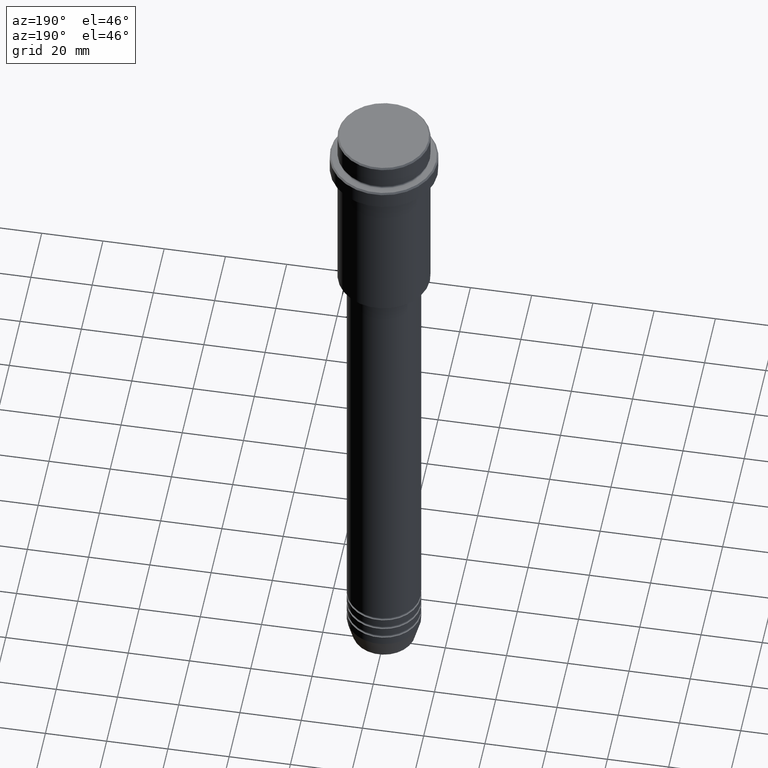
[diagram: clean part render]
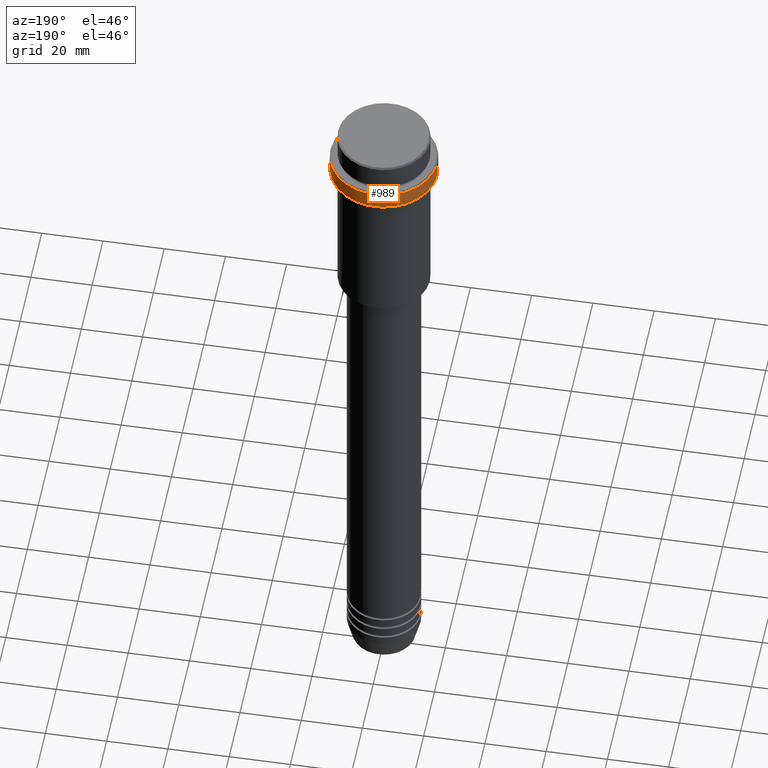
[diagram: same view with one face highlighted and labeled with its STEP entity id]
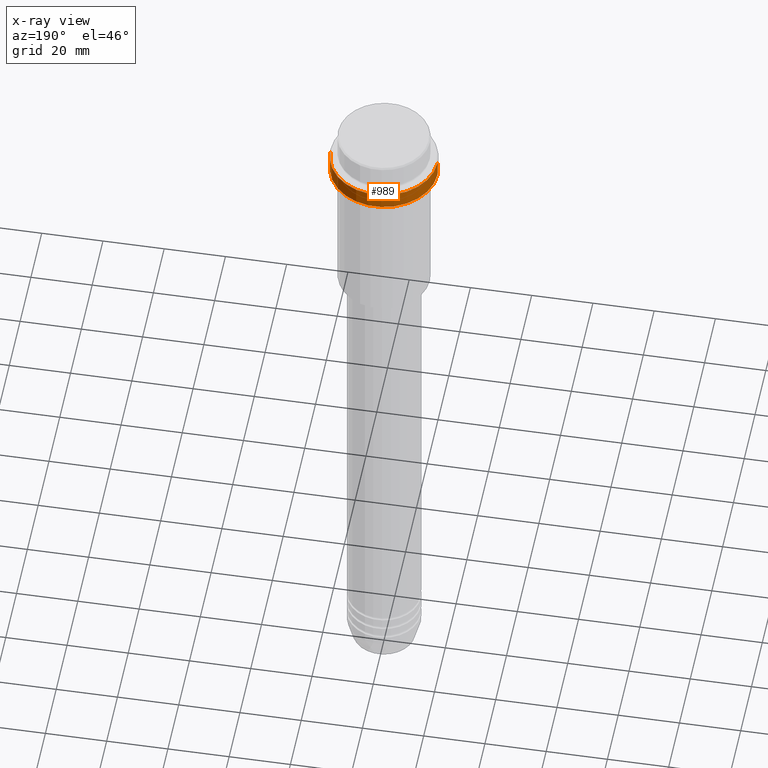
[diagram: x-ray of the same camera — body ghosted, the highlighted face saturated]
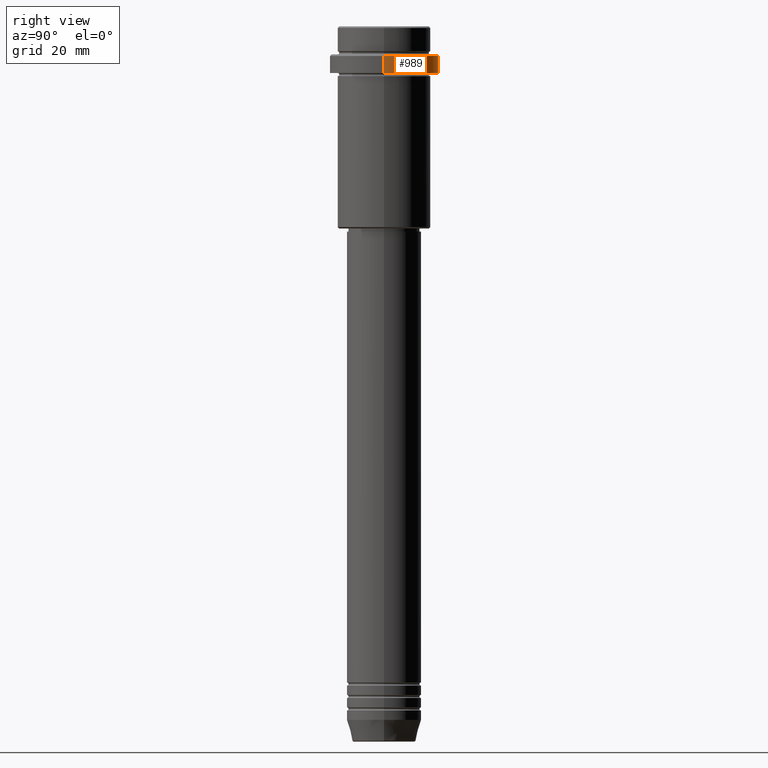
[diagram: same view with one face highlighted and labeled with its STEP entity id]
A machine part, auxiliary view. The second image highlights one B-rep face of the part: STEP entity #989.
The next image is the same camera in x-ray: the body ghosted, the highlighted face saturated — about 0% of this face is hidden behind the body in this view.
A second angle (right view) of the same face is appended — the face is thin or edge-on in the first view.
In plain terms, the highlighted cylindrical surface (partial cylindrical patch) has radius 17.5 mm, axis along (-0, -0, 1).
Its self-contained STEP definition (entity closure, byte-faithful):
#47 = EDGE_CURVE ( 'NONE', #285, #329, #1099, .T. ) ;
#48 = FACE_OUTER_BOUND ( 'NONE', #953, .T. ) ;
#63 = ORIENTED_EDGE ( 'NONE', *, *, #462, .T. ) ;
#92 = DIRECTION ( 'NONE',  ( -0.000000000000000000, -0.000000000000000000, 1.000000000000000000 ) ) ;
#115 = CARTESIAN_POINT ( 'NONE',  ( -17.50000000000000000, 2.143131898507868248E-15, -15.00000000000000000 ) ) ;
#124 = VERTEX_POINT ( 'NONE', #932 ) ;
#153 = CIRCLE ( 'NONE', #248, 17.50000000000000000 ) ;
#186 = CARTESIAN_POINT ( 'NONE',  ( 17.50000000000000000, 0.000000000000000000, -15.00000000000000000 ) ) ;
#248 = AXIS2_PLACEMENT_3D ( 'NONE', #445, #1191, #1170 ) ;
#262 = DIRECTION ( 'NONE',  ( 1.000000000000000000, 0.000000000000000000, 0.000000000000000000 ) ) ;
#285 = VERTEX_POINT ( 'NONE', #186 ) ;
#289 = CYLINDRICAL_SURFACE ( 'NONE', #912, 17.50000000000000000 ) ;
#325 = VECTOR ( 'NONE', #993, 1000.000000000000000 ) ;
#329 = VERTEX_POINT ( 'NONE', #115 ) ;
#397 = ORIENTED_EDGE ( 'NONE', *, *, #47, .T. ) ;
#445 = CARTESIAN_POINT ( 'NONE',  ( 0.000000000000000000, 0.000000000000000000, -9.500000000000026645 ) ) ;
#457 = LINE ( 'NONE', #1218, #325 ) ;
#462 = EDGE_CURVE ( 'NONE', #329, #903, #457, .T. ) ;
#484 = CARTESIAN_POINT ( 'NONE',  ( -17.50000000000000000, 2.143131898507868248E-15, -9.500000000000026645 ) ) ;
#534 = DIRECTION ( 'NONE',  ( 1.000000000000000000, 0.000000000000000000, 0.000000000000000000 ) ) ;
#682 = AXIS2_PLACEMENT_3D ( 'NONE', #1399, #92, #534 ) ;
#741 = EDGE_CURVE ( 'NONE', #903, #124, #153, .T. ) ;
#884 = EDGE_CURVE ( 'NONE', #285, #124, #986, .T. ) ;
#896 = ORIENTED_EDGE ( 'NONE', *, *, #741, .T. ) ;
#903 = VERTEX_POINT ( 'NONE', #484 ) ;
#911 = ORIENTED_EDGE ( 'NONE', *, *, #884, .F. ) ;
#912 = AXIS2_PLACEMENT_3D ( 'NONE', #1147, #1249, #262 ) ;
#917 = DIRECTION ( 'NONE',  ( -0.000000000000000000, -0.000000000000000000, 1.000000000000000000 ) ) ;
#928 = CARTESIAN_POINT ( 'NONE',  ( 17.50000000000000000, 0.000000000000000000, 0.000000000000000000 ) ) ;
#932 = CARTESIAN_POINT ( 'NONE',  ( 17.50000000000000000, 0.000000000000000000, -9.500000000000026645 ) ) ;
#953 = EDGE_LOOP ( 'NONE', ( #397, #63, #896, #911 ) ) ;
#986 = LINE ( 'NONE', #928, #1021 ) ;
#989 = ADVANCED_FACE ( 'NONE', ( #48 ), #289, .T. ) ;
#993 = DIRECTION ( 'NONE',  ( -0.000000000000000000, -0.000000000000000000, 1.000000000000000000 ) ) ;
#1021 = VECTOR ( 'NONE', #917, 1000.000000000000000 ) ;
#1099 = CIRCLE ( 'NONE', #682, 17.50000000000000000 ) ;
#1147 = CARTESIAN_POINT ( 'NONE',  ( 0.000000000000000000, 0.000000000000000000, 0.000000000000000000 ) ) ;
#1170 = DIRECTION ( 'NONE',  ( 1.000000000000000000, 0.000000000000000000, 0.000000000000000000 ) ) ;
#1191 = DIRECTION ( 'NONE',  ( 0.000000000000000000, 0.000000000000000000, -1.000000000000000000 ) ) ;
#1218 = CARTESIAN_POINT ( 'NONE',  ( -17.50000000000000000, 2.143131898507868248E-15, 0.000000000000000000 ) ) ;
#1249 = DIRECTION ( 'NONE',  ( -0.000000000000000000, -0.000000000000000000, 1.000000000000000000 ) ) ;
#1399 = CARTESIAN_POINT ( 'NONE',  ( 0.000000000000000000, 0.000000000000000000, -15.00000000000000000 ) ) ;